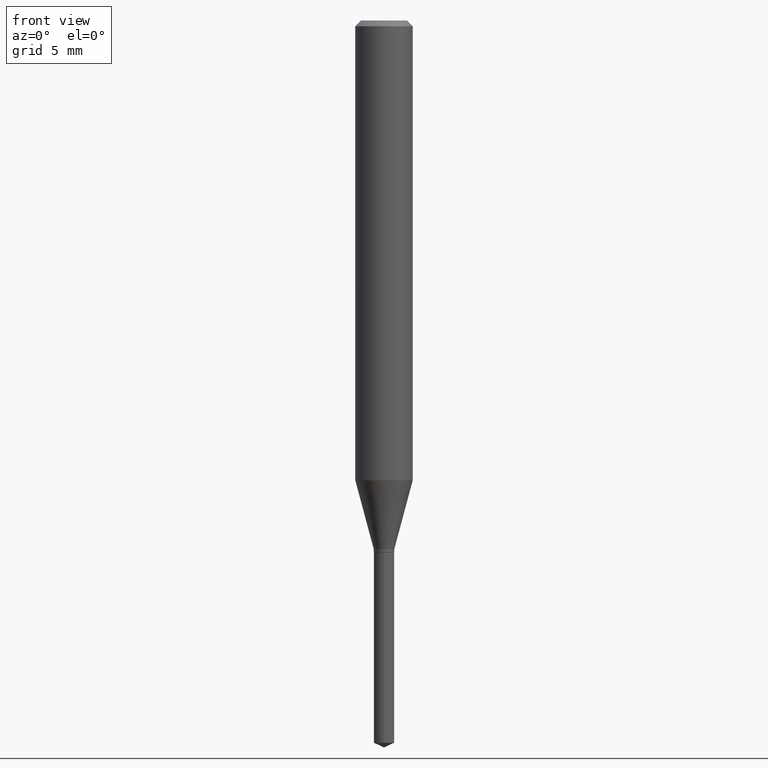
[diagram: clean part render]
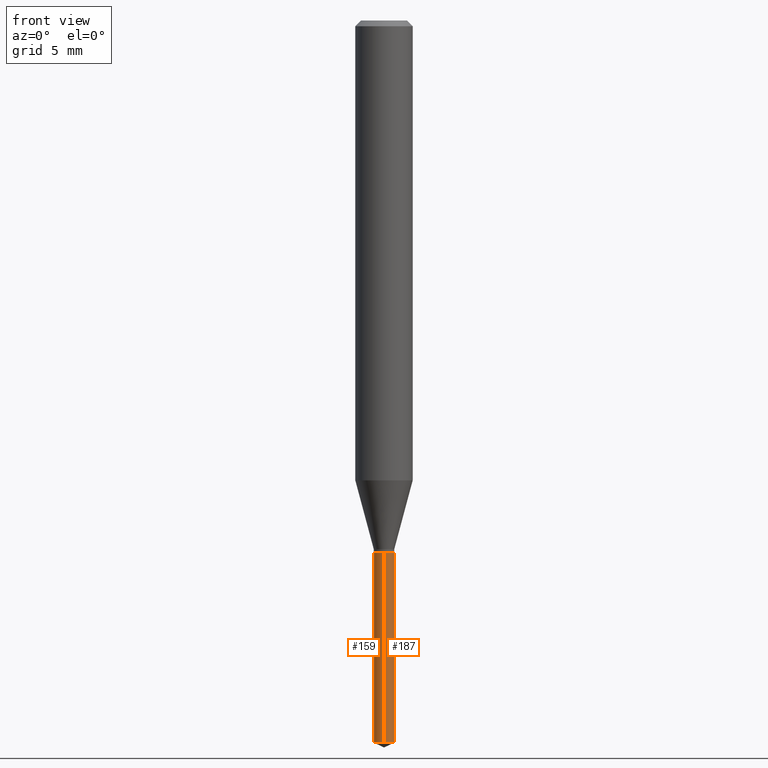
[diagram: same view with one multi-face feature highlighted, each face labeled with its STEP entity id]
A machine part, front view. The highlighted faces form ONE feature: a constant-radius fillet chain: 2 tangent blend faces with common blend radius 0.5347 mm. The faces share edges in the B-rep.
Their STEP definitions:
[1] entity #159 (Cylinder):
#13 = AXIS2_PLACEMENT_3D ( 'NONE', #444, #364, #286 ) ;
#14 = EDGE_LOOP ( 'NONE', ( #388, #338, #309, #311 ) ) ;
#51 = CARTESIAN_POINT ( 'NONE',  ( 2.676565608369631794E-29, -3.821426325363822773E-15, -1.094499999999999806 ) ) ;
#59 = EDGE_CURVE ( 'NONE', #71, #428, #441, .T. ) ;
#71 = VERTEX_POINT ( 'NONE', #219 ) ;
#74 = VECTOR ( 'NONE', #161, 39.37007874015748143 ) ;
#100 = CARTESIAN_POINT ( 'NONE',  ( -1.469913643652595637E-16, -0.02105000000000518956, -1.486284223795837134 ) ) ;
#133 = CYLINDRICAL_SURFACE ( 'NONE', #151, 0.02104999999999999927 ) ;
#151 = AXIS2_PLACEMENT_3D ( 'NONE', #450, #477, #442 ) ;
#152 = VECTOR ( 'NONE', #257, 39.37007874015748143 ) ;
#155 = EDGE_CURVE ( 'NONE', #71, #472, #268, .T. ) ;
#159 = ADVANCED_FACE ( 'NONE', ( #328 ), #133, .T. ) ;
#161 = DIRECTION ( 'NONE',  ( -2.445470214571802396E-29, 3.491479321953280158E-15, 1.000000000000000000 ) ) ;
#164 = AXIS2_PLACEMENT_3D ( 'NONE', #51, #209, #176 ) ;
#176 = DIRECTION ( 'NONE',  ( -6.982962677686267499E-15, -1.000000000000000000, 6.488950103715589928E-15 ) ) ;
#200 = EDGE_CURVE ( 'NONE', #472, #382, #279, .T. ) ;
#209 = DIRECTION ( 'NONE',  ( -2.445470214571802116E-29, 3.491479321953280158E-15, 1.000000000000000000 ) ) ;
#219 = CARTESIAN_POINT ( 'NONE',  ( 1.495692458775374208E-16, 0.02104999999999480897, -1.486284223795837134 ) ) ;
#221 = LINE ( 'NONE', #287, #152 ) ;
#257 = DIRECTION ( 'NONE',  ( -2.445470214571802396E-29, 3.491479321953280158E-15, 1.000000000000000000 ) ) ;
#260 = CARTESIAN_POINT ( 'NONE',  ( 1.495692458775374701E-16, 0.02104999999999617941, -1.094500000000000028 ) ) ;
#268 = LINE ( 'NONE', #420, #74 ) ;
#279 = CIRCLE ( 'NONE', #164, 0.02104999999999999927 ) ;
#286 = DIRECTION ( 'NONE',  ( -6.982962677686267499E-15, -1.000000000000000000, 0.000000000000000000 ) ) ;
#287 = CARTESIAN_POINT ( 'NONE',  ( -1.469913643652691780E-16, -0.02105000000000382260, -1.094499999999999806 ) ) ;
#309 = ORIENTED_EDGE ( 'NONE', *, *, #317, .T. ) ;
#311 = ORIENTED_EDGE ( 'NONE', *, *, #200, .F. ) ;
#317 = EDGE_CURVE ( 'NONE', #428, #382, #221, .T. ) ;
#328 = FACE_OUTER_BOUND ( 'NONE', #14, .T. ) ;
#338 = ORIENTED_EDGE ( 'NONE', *, *, #59, .T. ) ;
#364 = DIRECTION ( 'NONE',  ( -2.445470214571802116E-29, 3.491479321953280158E-15, 1.000000000000000000 ) ) ;
#371 = CARTESIAN_POINT ( 'NONE',  ( -1.469913643652691780E-16, -0.02105000000000382260, -1.094499999999999806 ) ) ;
#382 = VERTEX_POINT ( 'NONE', #371 ) ;
#388 = ORIENTED_EDGE ( 'NONE', *, *, #155, .F. ) ;
#420 = CARTESIAN_POINT ( 'NONE',  ( 1.495692458775278066E-16, 0.02104999999999617941, -1.094500000000000028 ) ) ;
#428 = VERTEX_POINT ( 'NONE', #100 ) ;
#441 = CIRCLE ( 'NONE', #13, 0.02104999999999999927 ) ;
#442 = DIRECTION ( 'NONE',  ( -6.982962677686267499E-15, -1.000000000000000000, 6.488950103715589928E-15 ) ) ;
#444 = CARTESIAN_POINT ( 'NONE',  ( 3.634662258201484949E-29, -5.189332841414504652E-15, -1.486284223795837134 ) ) ;
#450 = CARTESIAN_POINT ( 'NONE',  ( 2.676565608369631794E-29, -3.821426325363822773E-15, -1.094499999999999806 ) ) ;
#472 = VERTEX_POINT ( 'NONE', #260 ) ;
#477 = DIRECTION ( 'NONE',  ( -2.445470214571802116E-29, 3.491479321953280158E-15, 1.000000000000000000 ) ) ;
[2] entity #187 (Cylinder):
#54 = AXIS2_PLACEMENT_3D ( 'NONE', #469, #123, #276 ) ;
#62 = AXIS2_PLACEMENT_3D ( 'NONE', #271, #82, #233 ) ;
#71 = VERTEX_POINT ( 'NONE', #219 ) ;
#74 = VECTOR ( 'NONE', #161, 39.37007874015748143 ) ;
#77 = DIRECTION ( 'NONE',  ( -2.445470214571802116E-29, 3.491479321953280158E-15, 1.000000000000000000 ) ) ;
#82 = DIRECTION ( 'NONE',  ( -2.445470214571802116E-29, 3.491479321953280158E-15, 1.000000000000000000 ) ) ;
#87 = CIRCLE ( 'NONE', #62, 0.02104999999999999927 ) ;
#100 = CARTESIAN_POINT ( 'NONE',  ( -1.469913643652595637E-16, -0.02105000000000518956, -1.486284223795837134 ) ) ;
#115 = DIRECTION ( 'NONE',  ( -6.982962677686267499E-15, -1.000000000000000000, 0.000000000000000000 ) ) ;
#123 = DIRECTION ( 'NONE',  ( -2.445470214571802116E-29, 3.491479321953280158E-15, 1.000000000000000000 ) ) ;
#124 = CYLINDRICAL_SURFACE ( 'NONE', #54, 0.02104999999999999927 ) ;
#152 = VECTOR ( 'NONE', #257, 39.37007874015748143 ) ;
#155 = EDGE_CURVE ( 'NONE', #71, #472, #268, .T. ) ;
#161 = DIRECTION ( 'NONE',  ( -2.445470214571802396E-29, 3.491479321953280158E-15, 1.000000000000000000 ) ) ;
#187 = ADVANCED_FACE ( 'NONE', ( #466 ), #124, .T. ) ;
#214 = ORIENTED_EDGE ( 'NONE', *, *, #445, .T. ) ;
#219 = CARTESIAN_POINT ( 'NONE',  ( 1.495692458775374208E-16, 0.02104999999999480897, -1.486284223795837134 ) ) ;
#221 = LINE ( 'NONE', #287, #152 ) ;
#233 = DIRECTION ( 'NONE',  ( -6.982962677686267499E-15, -1.000000000000000000, 6.488950103715589928E-15 ) ) ;
#257 = DIRECTION ( 'NONE',  ( -2.445470214571802396E-29, 3.491479321953280158E-15, 1.000000000000000000 ) ) ;
#260 = CARTESIAN_POINT ( 'NONE',  ( 1.495692458775374701E-16, 0.02104999999999617941, -1.094500000000000028 ) ) ;
#262 = AXIS2_PLACEMENT_3D ( 'NONE', #345, #77, #115 ) ;
#268 = LINE ( 'NONE', #420, #74 ) ;
#271 = CARTESIAN_POINT ( 'NONE',  ( 2.676565608369631794E-29, -3.821426325363822773E-15, -1.094499999999999806 ) ) ;
#276 = DIRECTION ( 'NONE',  ( -6.982962677686267499E-15, -1.000000000000000000, 6.488950103715589928E-15 ) ) ;
#287 = CARTESIAN_POINT ( 'NONE',  ( -1.469913643652691780E-16, -0.02105000000000382260, -1.094499999999999806 ) ) ;
#295 = EDGE_CURVE ( 'NONE', #382, #472, #87, .T. ) ;
#317 = EDGE_CURVE ( 'NONE', #428, #382, #221, .T. ) ;
#345 = CARTESIAN_POINT ( 'NONE',  ( 3.634662258201484949E-29, -5.189332841414504652E-15, -1.486284223795837134 ) ) ;
#358 = ORIENTED_EDGE ( 'NONE', *, *, #295, .F. ) ;
#359 = ORIENTED_EDGE ( 'NONE', *, *, #317, .F. ) ;
#371 = CARTESIAN_POINT ( 'NONE',  ( -1.469913643652691780E-16, -0.02105000000000382260, -1.094499999999999806 ) ) ;
#381 = ORIENTED_EDGE ( 'NONE', *, *, #155, .T. ) ;
#382 = VERTEX_POINT ( 'NONE', #371 ) ;
#420 = CARTESIAN_POINT ( 'NONE',  ( 1.495692458775278066E-16, 0.02104999999999617941, -1.094500000000000028 ) ) ;
#428 = VERTEX_POINT ( 'NONE', #100 ) ;
#445 = EDGE_CURVE ( 'NONE', #428, #71, #475, .T. ) ;
#463 = EDGE_LOOP ( 'NONE', ( #214, #381, #358, #359 ) ) ;
#466 = FACE_OUTER_BOUND ( 'NONE', #463, .T. ) ;
#469 = CARTESIAN_POINT ( 'NONE',  ( 2.676565608369631794E-29, -3.821426325363822773E-15, -1.094499999999999806 ) ) ;
#472 = VERTEX_POINT ( 'NONE', #260 ) ;
#475 = CIRCLE ( 'NONE', #262, 0.02104999999999999927 ) ;